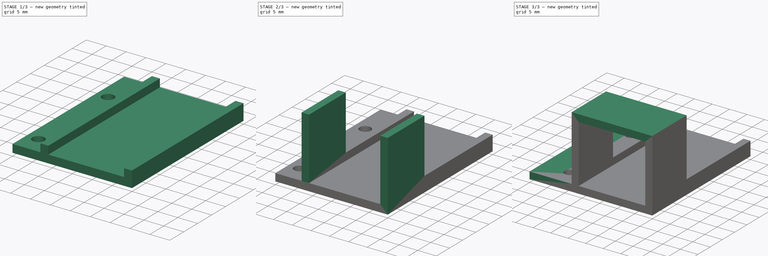
[diagram: build sequence overview — one tinted view per stage of 3, left to right]
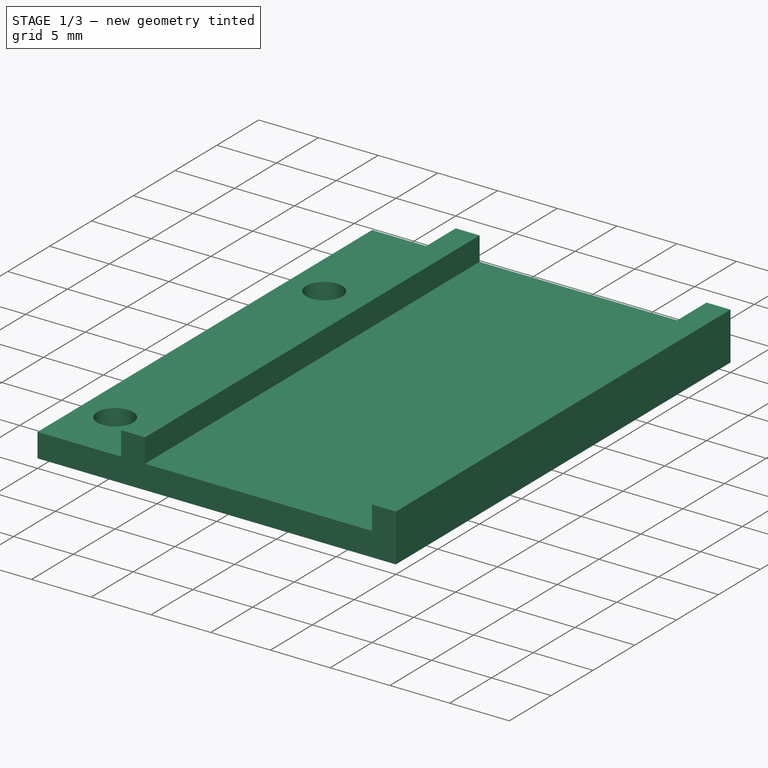
[diagram: stage 1 of 3 — iso view after this stage's code; geometry added in this stage tinted green]
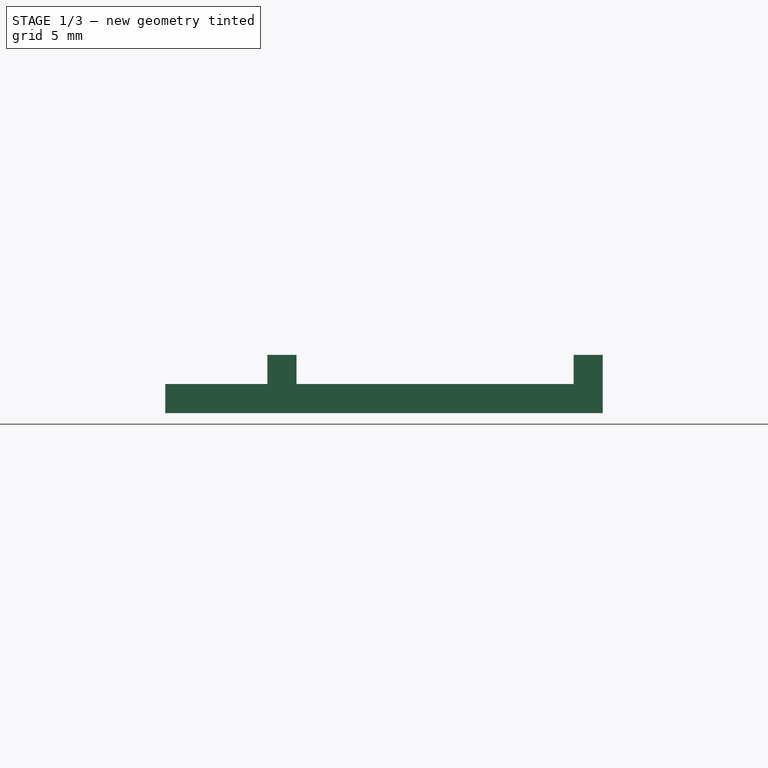
[diagram: stage 1 of 3 — front view after this stage's code; geometry added in this stage tinted green]
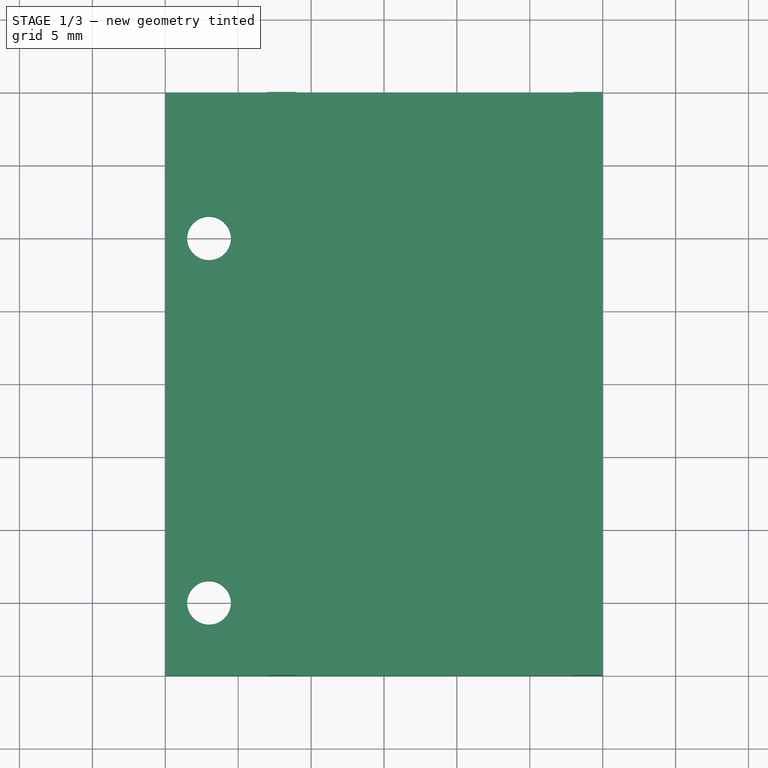
[diagram: stage 1 of 3 — top view after this stage's code; geometry added in this stage tinted green]
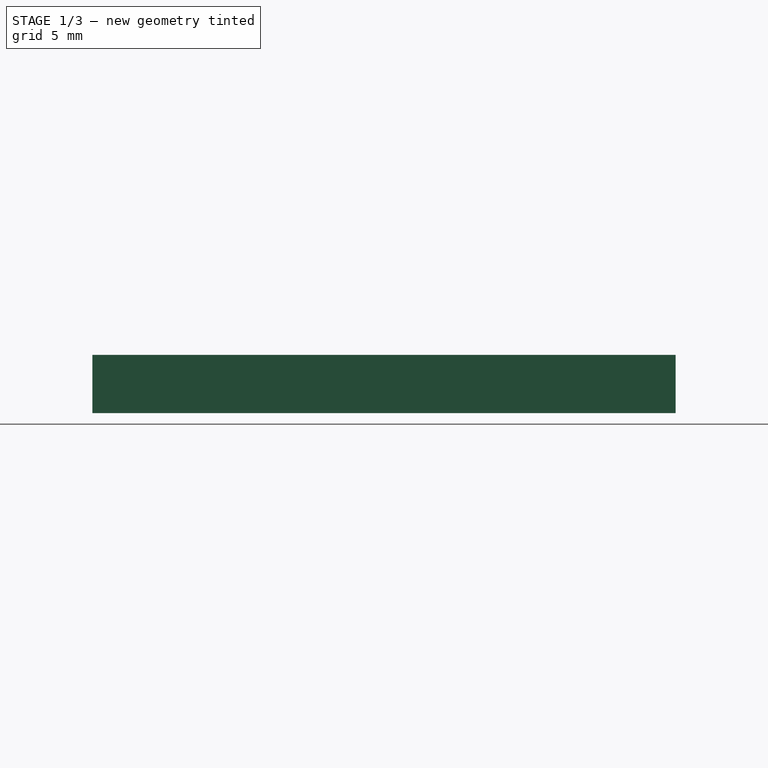
[diagram: stage 1 of 3 — right view after this stage's code; geometry added in this stage tinted green]
FCSTD DOCUMENT  (FreeCAD 0.16R6706 (Git))
Label: iROB-EA_SoporteHubUSB
License: All rights reserved
LicenseURL: http://en.wikipedia.org/wiki/All_rights_reserved
objects: Sketcher::SketchObject×6, PartDesign::Pad×6
note: 18 computed .brp shape members not serialized (recipe doc carries the construction recipe); baked Part::Feature solids carry a one-line shape summary decoded from their .brp

FEATURE [Sketcher::SketchObject] Sketch  label="Base"
  sketch-geometry (6):
    g0: LineSegment StartX=0 StartY=40 StartZ=0 EndX=30 EndY=40 EndZ=0
    g1: LineSegment StartX=30 StartY=40 StartZ=0 EndX=30 EndY=0 EndZ=0
    g2: LineSegment StartX=30 StartY=0 StartZ=0 EndX=0 EndY=0 EndZ=0
    g3: LineSegment StartX=0 StartY=0 StartZ=0 EndX=0 EndY=40 EndZ=0
    g4: Circle CenterX=3 CenterY=5 CenterZ=0 NormalX=0 NormalY=0 NormalZ=1 Radius=1.5
    g5: Circle CenterX=3 CenterY=30 CenterZ=0 NormalX=0 NormalY=0 NormalZ=1 Radius=1.5
  constraints (17):
    c: Coincident(g0,g1)
    c: Coincident(g1,g2)
    c: Coincident(g2,g3)
    c: Coincident(g3,g0)
    c: Horizontal(g0)
    c: Horizontal(g2)
    c: Vertical(g1)
    c: Vertical(g3)
    c: DistanceY(g3,g3) = 40
    c: DistanceX(g0,g0) = 30
    c: Coincident(g2,g-1)
    c: Radius(g4) = 1.5
    c: DistanceX(g4,g-1) = -3
    c: DistanceY(g-1,g4) = 5
    c: Radius(g5) = 1.5
    c: DistanceX(g5,g4) = 0
    c: DistanceY(g4,g5) = 25
FEATURE [PartDesign::Pad] Pad
  Length = 2
  Length2 = 100
  Sketch = -> Sketch
  Type = 0
FEATURE [Sketcher::SketchObject] Sketch001  label="Laterales"
  Placement = pos=(0,0,2) rot=(0,0,1;0rad)
  Support = -> Pad [Face8]
  sketch-geometry (8):
    g0: LineSegment StartX=28 StartY=40 StartZ=0 EndX=30 EndY=40 EndZ=0
    g1: LineSegment StartX=30 StartY=40 StartZ=0 EndX=30 EndY=0 EndZ=0
    g2: LineSegment StartX=30 StartY=0 StartZ=0 EndX=28 EndY=0 EndZ=0
    g3: LineSegment StartX=28 StartY=0 StartZ=0 EndX=28 EndY=40 EndZ=0
    g4: LineSegment StartX=7 StartY=40 StartZ=0 EndX=9 EndY=40 EndZ=0
    g5: LineSegment StartX=9 StartY=40 StartZ=0 EndX=9 EndY=0 EndZ=0
    g6: LineSegment StartX=9 StartY=0 StartZ=0 EndX=7 EndY=0 EndZ=0
    g7: LineSegment StartX=7 StartY=0 StartZ=0 EndX=7 EndY=40 EndZ=0
  constraints (24):
    c: Coincident(g0,g1)
    c: Coincident(g1,g2)
    c: Coincident(g2,g3)
    c: Coincident(g3,g0)
    c: Horizontal(g0)
    c: Horizontal(g2)
    c: Vertical(g1)
    c: Vertical(g3)
    c: DistanceX(g0,g0) = 2
    c: DistanceX(g2,g-1) = -28
    c: DistanceY(g-1,g2) = 0
    c: DistanceY(g1,g1) = 40
    c: Coincident(g4,g5)
    c: Coincident(g5,g6)
    c: Coincident(g6,g7)
    c: Coincident(g7,g4)
    c: Horizontal(g4)
    c: Horizontal(g6)
    c: Vertical(g5)
    c: Vertical(g7)
    c: DistanceX(g4,g4) = 2
    c: DistanceY(g5,g5) = 40
    c: DistanceX(g5,g2) = 19
    c: DistanceY(g-1,g6) = 0
FEATURE [PartDesign::Pad] Pad001
  Length = 2
  Length2 = 100
  Sketch = -> Sketch001
  Type = 0
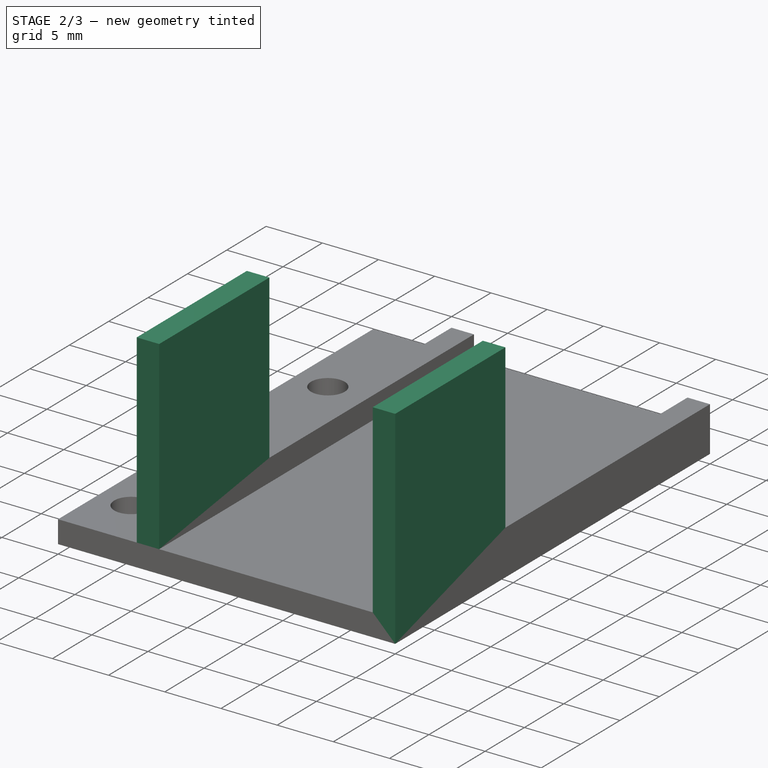
[diagram: stage 2 of 3 — iso view after this stage's code; geometry added in this stage tinted green]
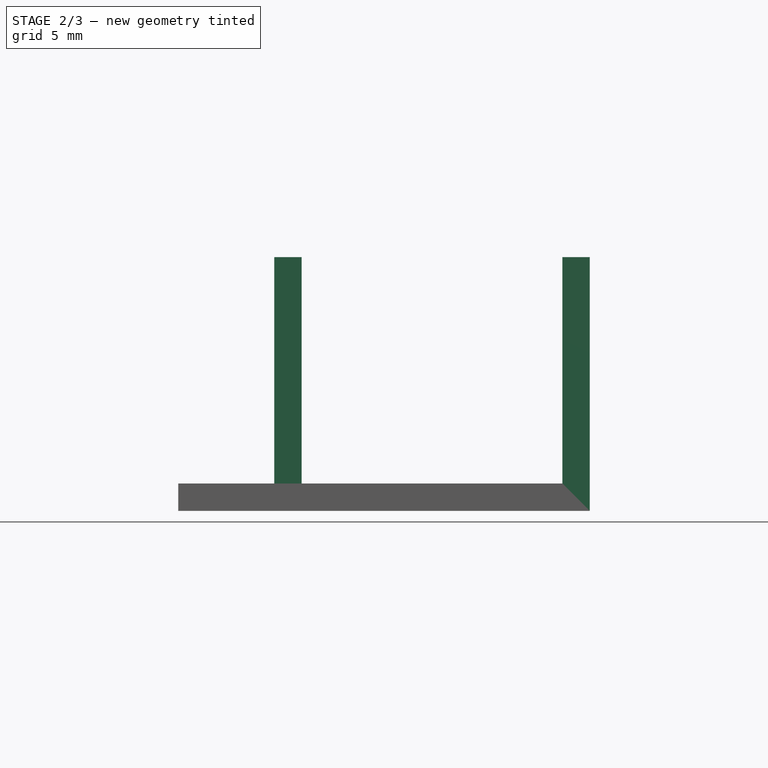
[diagram: stage 2 of 3 — front view after this stage's code; geometry added in this stage tinted green]
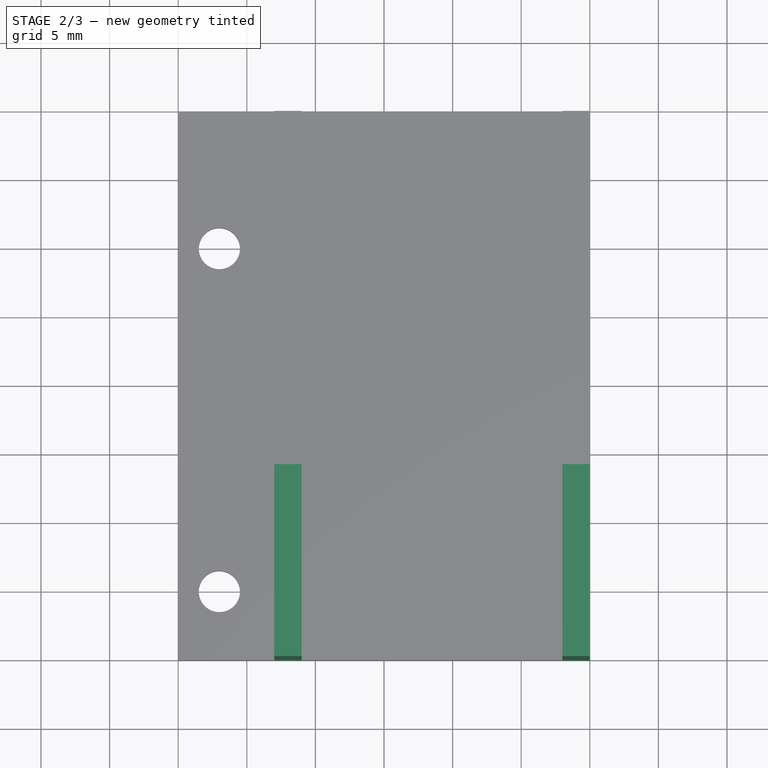
[diagram: stage 2 of 3 — top view after this stage's code; geometry added in this stage tinted green]
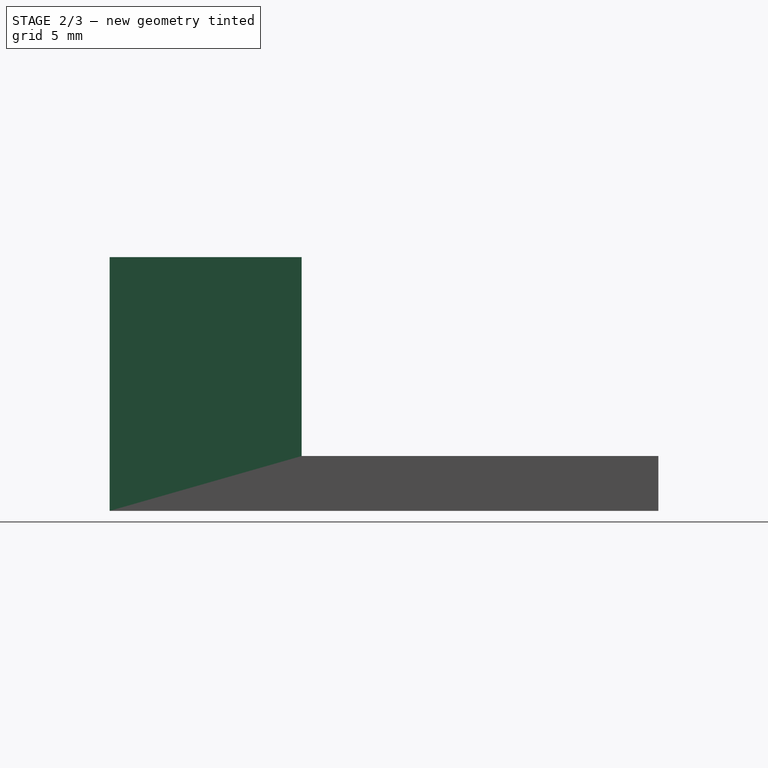
[diagram: stage 2 of 3 — right view after this stage's code; geometry added in this stage tinted green]
FEATURE [Sketcher::SketchObject] Sketch002  label="Lateral_Extension_A"
  Placement = pos=(0,0,4) rot=(0,0,1;0rad)
  Support = -> Pad001 [Face3]
  sketch-geometry (4):
    g0: LineSegment StartX=28 StartY=14 StartZ=0 EndX=30 EndY=14 EndZ=0
    g1: LineSegment StartX=30 StartY=14 StartZ=0 EndX=30 EndY=0 EndZ=0
    g2: LineSegment StartX=30 StartY=0 StartZ=0 EndX=28 EndY=0 EndZ=0
    g3: LineSegment StartX=28 StartY=0 StartZ=0 EndX=28 EndY=14 EndZ=0
  constraints (11):
    c: Coincident(g0,g1)
    c: Coincident(g1,g2)
    c: Coincident(g2,g3)
    c: Coincident(g3,g0)
    c: Horizontal(g0)
    c: Horizontal(g2)
    c: Vertical(g1)
    c: Vertical(g3)
    c: DistanceX(g0,g0) = 2
    c: DistanceY(g1,g1) = 14
    c: DistanceX(g2,g-1) = -28
FEATURE [PartDesign::Pad] Pad002
  Length = 14.5
  Length2 = 100
  Sketch = -> Sketch002
  Type = 0
FEATURE [Sketcher::SketchObject] Sketch003  label="Lateral_Extension_B"
  Placement = pos=(0,0,4) rot=(0,0,1;0rad)
  Support = -> Pad002 [Face7]
  sketch-geometry (4):
    g0: LineSegment StartX=7 StartY=14 StartZ=0 EndX=9 EndY=14 EndZ=0
    g1: LineSegment StartX=9 StartY=14 StartZ=0 EndX=9 EndY=0 EndZ=0
    g2: LineSegment StartX=9 StartY=0 StartZ=0 EndX=7 EndY=0 EndZ=0
    g3: LineSegment StartX=7 StartY=0 StartZ=0 EndX=7 EndY=14 EndZ=0
  constraints (11):
    c: Coincident(g0,g1)
    c: Coincident(g1,g2)
    c: Coincident(g2,g3)
    c: Coincident(g3,g0)
    c: Horizontal(g0)
    c: Horizontal(g2)
    c: Vertical(g1)
    c: Vertical(g3)
    c: DistanceX(g0,g0) = 2
    c: DistanceY(g1,g1) = 14
    c: DistanceX(g2,g-1) = -7
FEATURE [PartDesign::Pad] Pad003
  Length = 14.5
  Length2 = 100
  Sketch = -> Sketch003
  Type = 0
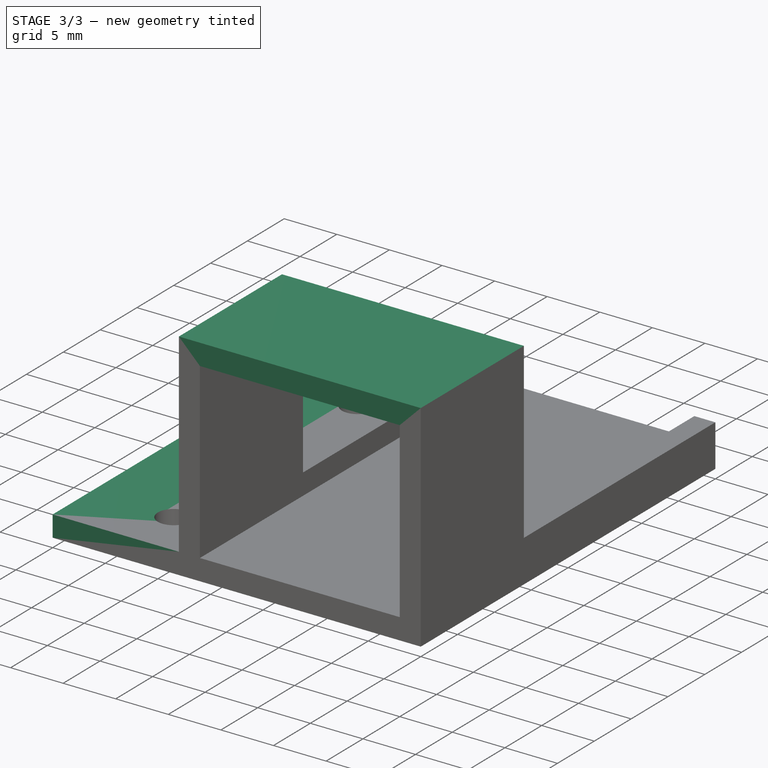
[diagram: stage 3 of 3 — iso view after this stage's code; geometry added in this stage tinted green]
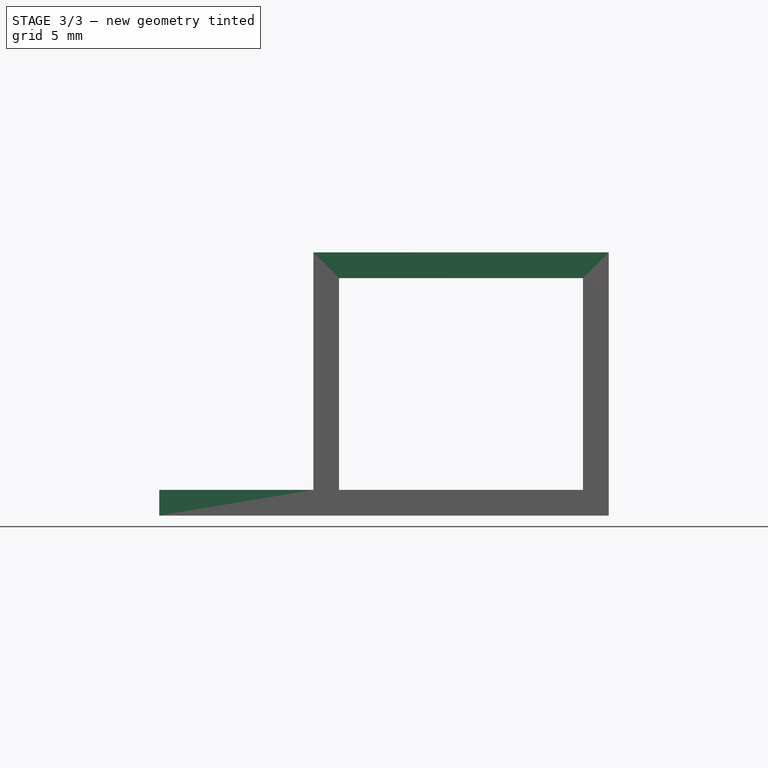
[diagram: stage 3 of 3 — front view after this stage's code; geometry added in this stage tinted green]
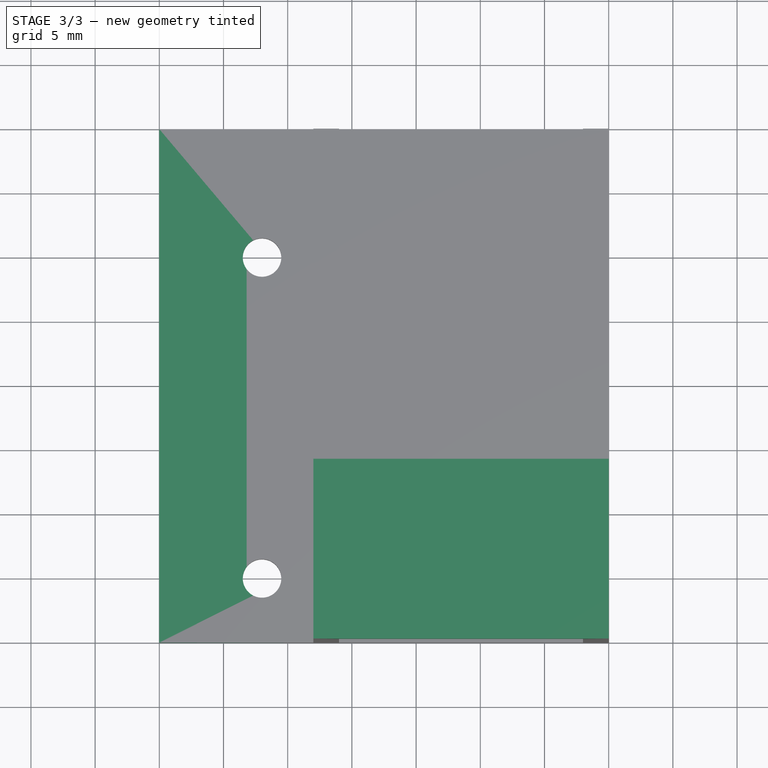
[diagram: stage 3 of 3 — top view after this stage's code; geometry added in this stage tinted green]
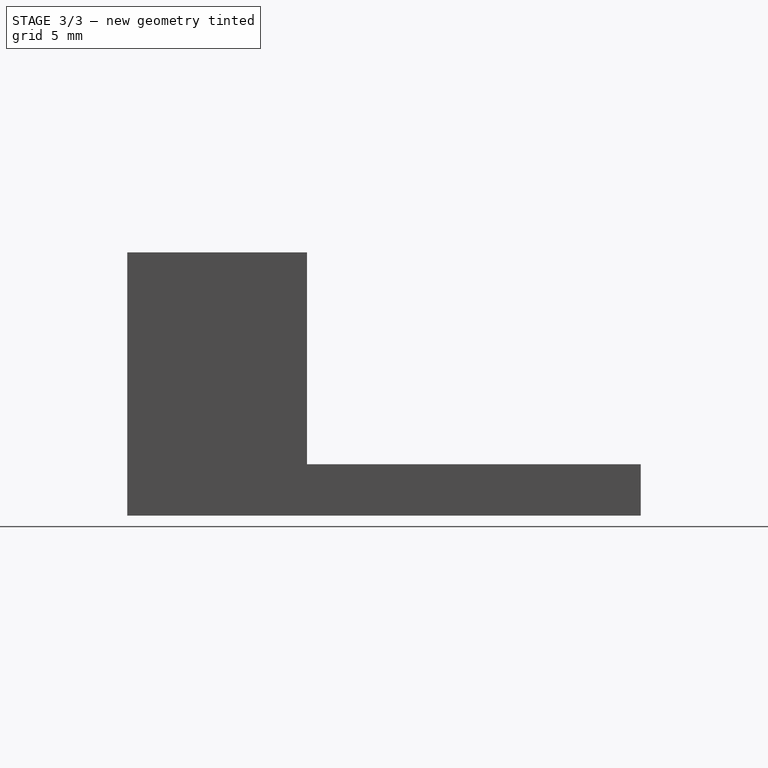
[diagram: stage 3 of 3 — right view after this stage's code; geometry added in this stage tinted green]
FEATURE [Sketcher::SketchObject] Sketch004  label="Superior"
  Placement = pos=(0,0,18.5) rot=(0,0,1;0rad)
  Support = -> Pad003 [Face15]
  sketch-geometry (4):
    g0: LineSegment StartX=7 StartY=14 StartZ=0 EndX=30 EndY=14 EndZ=0
    g1: LineSegment StartX=30 StartY=14 StartZ=0 EndX=30 EndY=0 EndZ=0
    g2: LineSegment StartX=30 StartY=0 StartZ=0 EndX=7 EndY=0 EndZ=0
    g3: LineSegment StartX=7 StartY=0 StartZ=0 EndX=7 EndY=14 EndZ=0
  constraints (11):
    c: Coincident(g0,g1)
    c: Coincident(g1,g2)
    c: Coincident(g2,g3)
    c: Coincident(g3,g0)
    c: Horizontal(g0)
    c: Horizontal(g2)
    c: Vertical(g1)
    c: Vertical(g3)
    c: DistanceY(g1,g1) = 14
    c: DistanceX(g2,g2) = 23
    c: DistanceX(g2,g-1) = -7
FEATURE [PartDesign::Pad] Pad004
  Length = 2
  Length2 = 100
  Sketch = -> Sketch004
  Type = 0
FEATURE [Sketcher::SketchObject] Sketch005  label="Extension_Lado_Tornillos"
  Placement = pos=(0,0,0) rot=(0.57735,-0.57735,-0.57735;2.0944rad)
  Support = -> Pad004 [Face7]
  sketch-geometry (4):
    g0: LineSegment StartX=-40 StartY=2 StartZ=0 EndX=0 EndY=2 EndZ=0
    g1: LineSegment StartX=0 StartY=2 StartZ=0 EndX=0 EndY=0 EndZ=0
    g2: LineSegment StartX=0 StartY=0 StartZ=0 EndX=-40 EndY=0 EndZ=0
    g3: LineSegment StartX=-40 StartY=0 StartZ=0 EndX=-40 EndY=2 EndZ=0
  constraints (11):
    c: Coincident(g0,g1)
    c: Coincident(g1,g2)
    c: Coincident(g2,g3)
    c: Coincident(g3,g0)
    c: Horizontal(g0)
    c: Horizontal(g2)
    c: Vertical(g1)
    c: Vertical(g3)
    c: DistanceX(g0,g0) = 40
    c: DistanceY(g1,g1) = 2
    c: Coincident(g1,g-1)
FEATURE [PartDesign::Pad] Pad005
  Length = 5
  Length2 = 100
  Sketch = -> Sketch005
  Type = 0
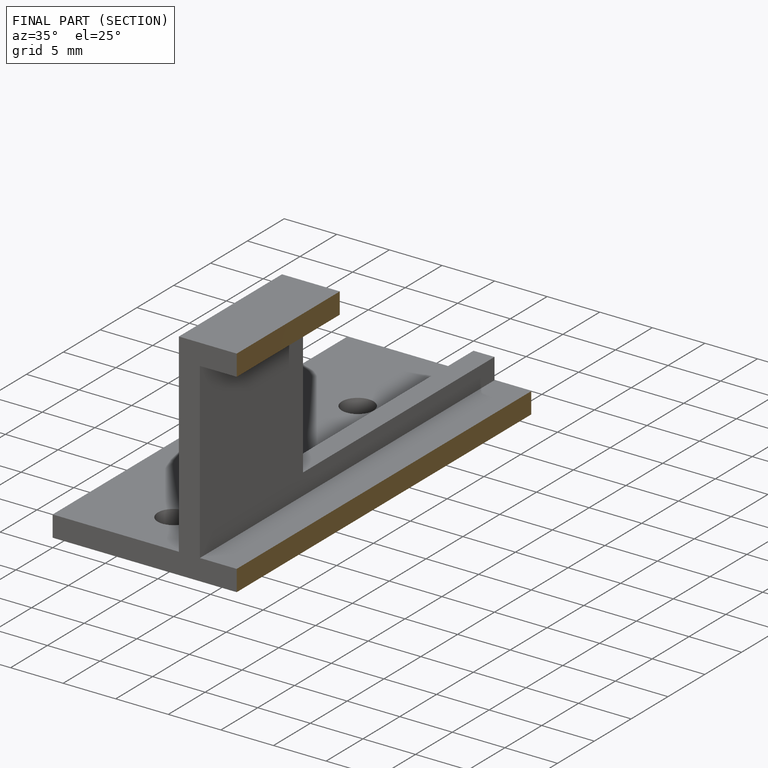
[diagram: finished part — half-section view (interior)]
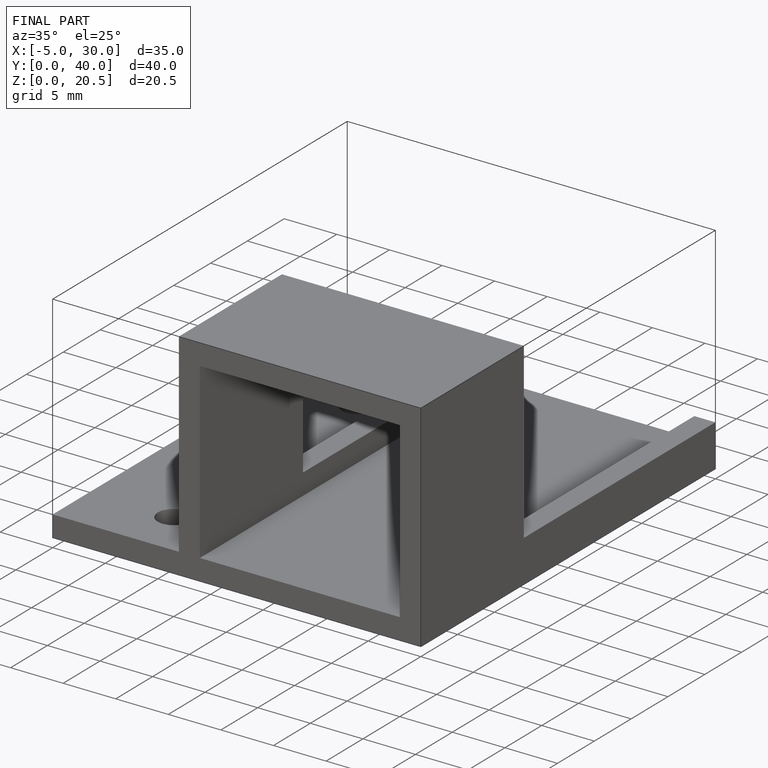
[diagram: finished part — iso view with bounding-box wireframe]
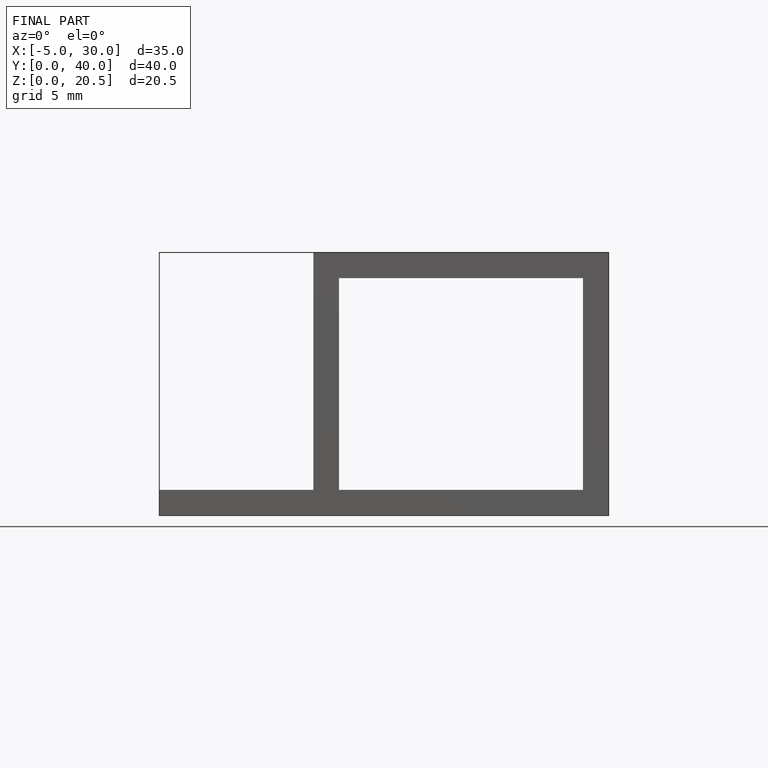
[diagram: finished part — front view with bounding-box wireframe]
